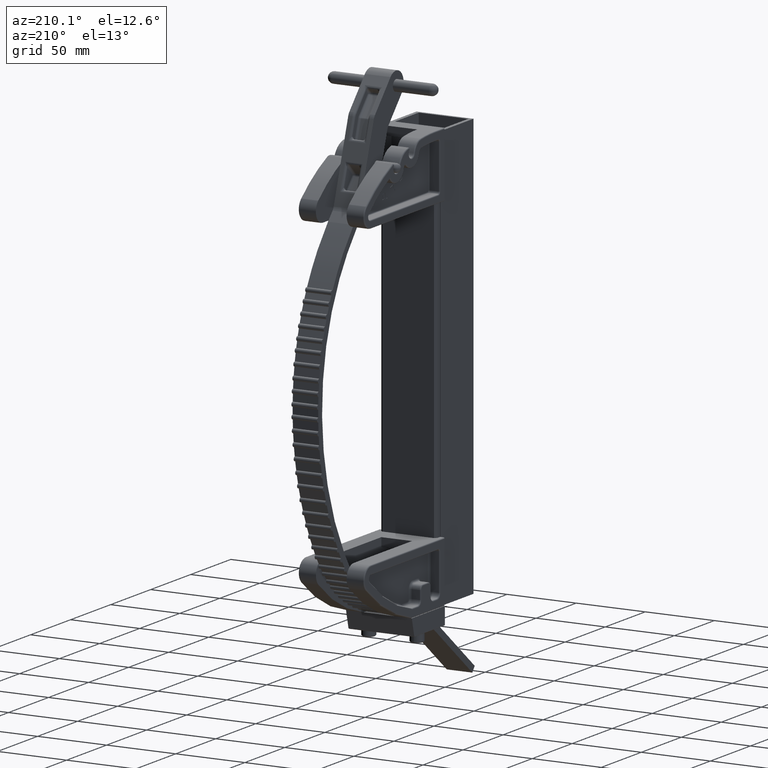
[diagram: clean part render]
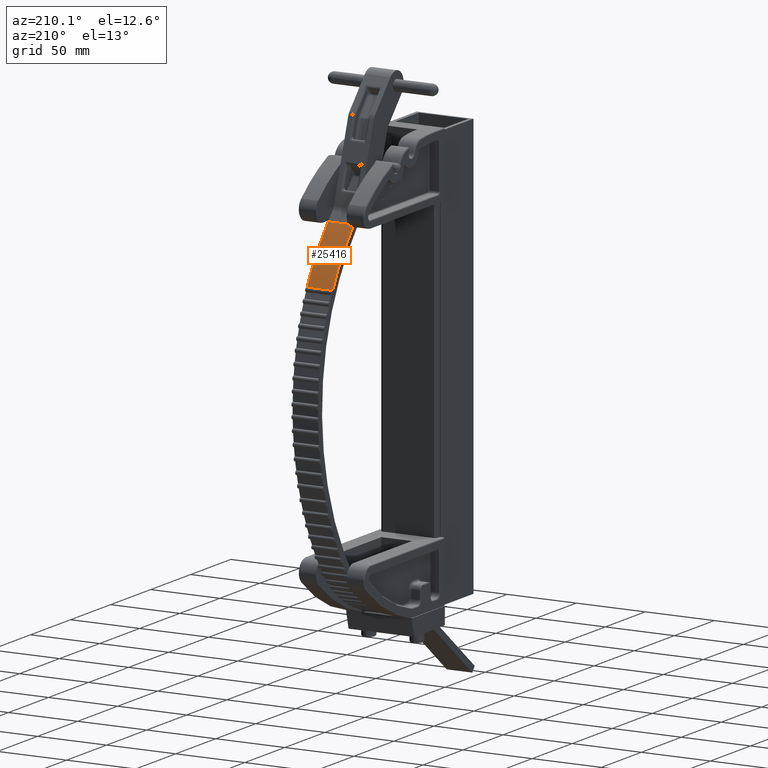
[diagram: same view with one face highlighted and labeled with its STEP entity id]
A machine part, auxiliary view. The second image highlights one B-rep face of the part: STEP entity #25416.
In plain terms, the highlighted face is a freeform B-spline surface patch.
Its self-contained STEP definition (entity closure, byte-faithful):
#209 = ORIENTED_EDGE ( 'NONE', *, *, #38261, .T. ) ;
#825 = CARTESIAN_POINT ( 'NONE',  ( -4.914295603552866400, -0.7106436609261753700, -0.3649999999999997100 ) ) ;
#908 = CARTESIAN_POINT ( 'NONE',  ( -4.322756997758377300, -0.6250000000000000000, 0.3650000000000002100 ) ) ;
#2201 = EDGE_CURVE ( 'NONE', #2647, #34091, #29421, .T. ) ;
#2517 = CARTESIAN_POINT ( 'NONE',  ( -5.471319350485552800, -0.8702112972392933600, -0.3649999999999996000 ) ) ;
#2647 = VERTEX_POINT ( 'NONE', #33689 ) ;
#3937 = LINE ( 'NONE', #32603, #19108 ) ;
#3943 = CARTESIAN_POINT ( 'NONE',  ( -4.914295603562891300, -0.7106436609276266500, 0.3650000000000002700 ) ) ;
#6346 = ORIENTED_EDGE ( 'NONE', *, *, #33490, .T. ) ;
#6607 = ORIENTED_EDGE ( 'NONE', *, *, #2201, .T. ) ;
#6874 = CARTESIAN_POINT ( 'NONE',  ( -3.703076168339263700, -0.6250000000000000000, -0.3649999999999999900 ) ) ;
#7001 = CARTESIAN_POINT ( 'NONE',  ( -5.471319350499349800, -0.8702112972432443100, 0.3650000000000002700 ) ) ;
#8251 = CARTESIAN_POINT ( 'NONE',  ( -3.703076168339263700, -0.6250000000000000000, 0.3649999999999999900 ) ) ;
#8564 = CARTESIAN_POINT ( 'NONE',  ( -5.471319350485552800, -0.8702112972392933600, 0.3650000000000004400 ) ) ;
#8926 = CARTESIAN_POINT ( 'NONE',  ( -5.471319350485552800, -0.8702112972392933600, 0.3650000000000004400 ) ) ;
#11147 = VERTEX_POINT ( 'NONE', #8926 ) ;
#11322 = CARTESIAN_POINT ( 'NONE',  ( -3.703076168339263700, -0.6250000000000000000, -0.3649999999999999900 ) ) ;
#13374 = DIRECTION ( 'NONE',  ( 6.409494854920720900E-031, 1.183291357831517700E-030, 1.000000000000000000 ) ) ;
#14537 = CARTESIAN_POINT ( 'NONE',  ( -4.322756997753126400, -0.6250000000000000000, 0.3650000000000001600 ) ) ;
#14917 = VERTEX_POINT ( 'NONE', #8251 ) ;
#15158 = B_SPLINE_SURFACE_WITH_KNOTS ( 'NONE', 3, 1, ( 
 ( #37189, #6874 ),
 ( #908, #22115 ),
 ( #3943, #25157 ),
 ( #7001, #28197 ) ),
 .UNSPECIFIED., .F., .F., .F.,
 ( 4, 4 ),
 ( 2, 2 ),
 ( 0.0000000000000000000, 0.1925248747629131900 ),
 ( 0.0000000000000000000, 1.000000000000000000 ),
 .UNSPECIFIED. ) ;
#17439 = CARTESIAN_POINT ( 'NONE',  ( -3.703076168339263700, -0.6250000000000000000, 0.3649999999999999900 ) ) ;
#19108 = VECTOR ( 'NONE', #35642, 39.37007874015748100 ) ;
#20276 = LINE ( 'NONE', #28475, #34499 ) ;
#21433 = B_SPLINE_CURVE_WITH_KNOTS ( 'NONE', 3,
 ( #17439, #14537, #26712, #8564 ),
 .UNSPECIFIED., .F., .F.,
 ( 4, 4 ),
 ( 0.0000000000000000000, 0.1925248747612820800 ),
 .UNSPECIFIED. ) ;
#22115 = CARTESIAN_POINT ( 'NONE',  ( -4.322756997758377300, -0.6250000000000000000, -0.3649999999999997700 ) ) ;
#25157 = CARTESIAN_POINT ( 'NONE',  ( -4.914295603562891300, -0.7106436609276266500, -0.3649999999999997100 ) ) ;
#25416 = ADVANCED_FACE ( 'NONE', ( #34991 ), #15158, .F. ) ;
#26712 = CARTESIAN_POINT ( 'NONE',  ( -4.914295603552866400, -0.7106436609261753700, 0.3650000000000002100 ) ) ;
#28197 = CARTESIAN_POINT ( 'NONE',  ( -5.471319350499349800, -0.8702112972432443100, -0.3649999999999997100 ) ) ;
#28475 = CARTESIAN_POINT ( 'NONE',  ( -5.471319350485554600, -0.8702112972392911400, 0.3650000000000003200 ) ) ;
#28739 = EDGE_LOOP ( 'NONE', ( #6607, #209, #38600, #6346 ) ) ;
#29421 = B_SPLINE_CURVE_WITH_KNOTS ( 'NONE', 3,
 ( #11322, #32176, #825, #33800 ),
 .UNSPECIFIED., .F., .F.,
 ( 4, 4 ),
 ( 0.0000000000000000000, 0.1925248747612820800 ),
 .UNSPECIFIED. ) ;
#32176 = CARTESIAN_POINT ( 'NONE',  ( -4.322756997753126400, -0.6250000000000000000, -0.3649999999999997700 ) ) ;
#32603 = CARTESIAN_POINT ( 'NONE',  ( -3.703076168339263700, -0.6250000000000000000, 0.3649999999999999900 ) ) ;
#33490 = EDGE_CURVE ( 'NONE', #14917, #2647, #3937, .T. ) ;
#33689 = CARTESIAN_POINT ( 'NONE',  ( -3.703076168339263700, -0.6250000000000000000, -0.3649999999999999900 ) ) ;
#33800 = CARTESIAN_POINT ( 'NONE',  ( -5.471319350485552800, -0.8702112972392933600, -0.3649999999999996000 ) ) ;
#34091 = VERTEX_POINT ( 'NONE', #2517 ) ;
#34499 = VECTOR ( 'NONE', #13374, 39.37007874015748100 ) ;
#34701 = EDGE_CURVE ( 'NONE', #14917, #11147, #21433, .T. ) ;
#34991 = FACE_OUTER_BOUND ( 'NONE', #28739, .T. ) ;
#35642 = DIRECTION ( 'NONE',  ( -6.409494854920720900E-031, -1.183291357831517700E-030, -1.000000000000000000 ) ) ;
#37189 = CARTESIAN_POINT ( 'NONE',  ( -3.703076168339263700, -0.6250000000000000000, 0.3649999999999999900 ) ) ;
#38261 = EDGE_CURVE ( 'NONE', #34091, #11147, #20276, .T. ) ;
#38600 = ORIENTED_EDGE ( 'NONE', *, *, #34701, .F. ) ;